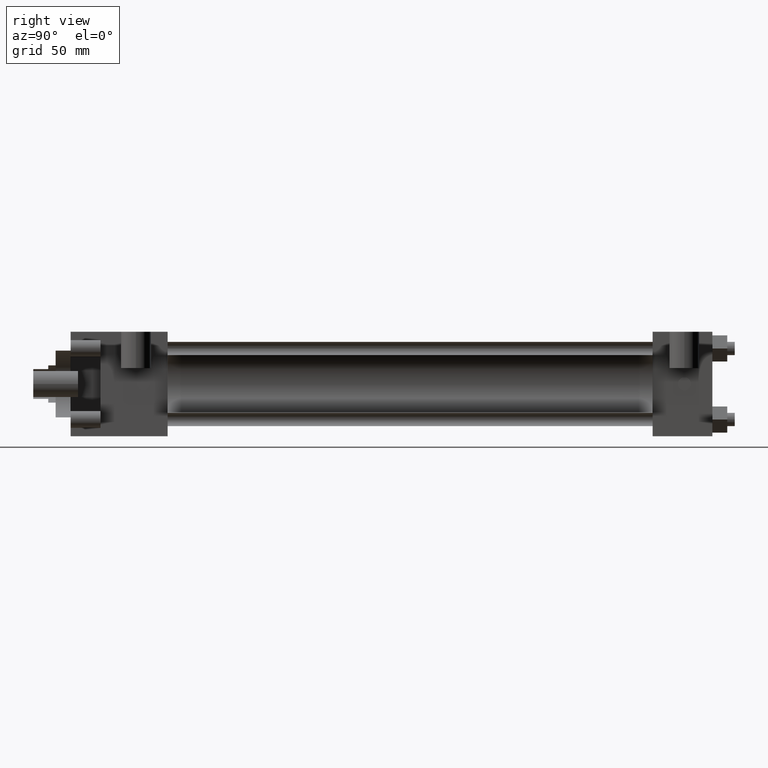
[diagram: clean part render]
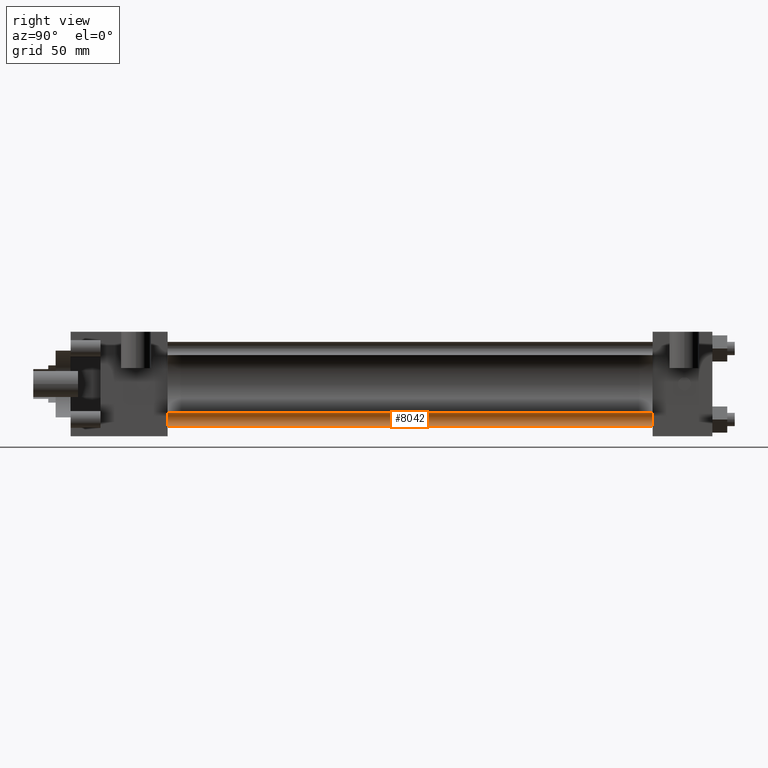
[diagram: same view with one face highlighted and labeled with its STEP entity id]
A machine part, right view. The second image highlights one B-rep face of the part: STEP entity #8042.
In plain terms, the highlighted cylindrical surface (bore or boss wall) has radius 2.8575 mm, axis along (0, -1, 0).
Its self-contained STEP definition (entity closure, byte-faithful):
#871=EDGE_CURVE('',#877,#877,#872,.T.);
#872=CIRCLE('',#873,2.857500000E+000);
#873=AXIS2_PLACEMENT_3D('',#874,#875,#876);
#874=CARTESIAN_POINT('',(1.511300000E+001,5.715000000E+001,-1.511300000E+001));
#875=DIRECTION('',(0.0E+000,1.0E+000,0.0E+000));
#876=DIRECTION('',(1.0E+000,0.0E+000,0.0E+000));
#877=VERTEX_POINT('',#878);
#878=CARTESIAN_POINT('',(1.797050000E+001,5.715000000E+001,-1.511300000E+001));
#1119=FACE_OUTER_BOUND('',#1121,.T.);
#1120=FACE_BOUND('',#1122,.T.);
#1121=EDGE_LOOP('',(#1123));
#1122=EDGE_LOOP('',(#1124));
#1123=ORIENTED_EDGE('',*,*,#1173,.F.);
#1124=ORIENTED_EDGE('',*,*,#871,.T.);
#1125=CYLINDRICAL_SURFACE('',#1126,2.857500000E+000);
#1126=AXIS2_PLACEMENT_3D('',#1127,#1128,#1129);
#1127=CARTESIAN_POINT('',(1.511300000E+001,2.635250000E+002,-1.511300000E+001));
#1128=DIRECTION('',(0.0E+000,-1.0E+000,0.0E+000));
#1129=DIRECTION('',(0.0E+000,0.0E+000,-1.0E+000));
#1173=EDGE_CURVE('',#1179,#1179,#1174,.T.);
#1174=CIRCLE('',#1175,2.857500000E+000);
#1175=AXIS2_PLACEMENT_3D('',#1176,#1177,#1178);
#1176=CARTESIAN_POINT('',(1.511300000E+001,2.635250000E+002,-1.511300000E+001));
#1177=DIRECTION('',(0.0E+000,1.0E+000,0.0E+000));
#1178=DIRECTION('',(1.0E+000,0.0E+000,0.0E+000));
#1179=VERTEX_POINT('',#1180);
#1180=CARTESIAN_POINT('',(1.797050000E+001,2.635250000E+002,-1.511300000E+001));
#8042=ADVANCED_FACE('',(#1119,#1120),#1125,.T.);